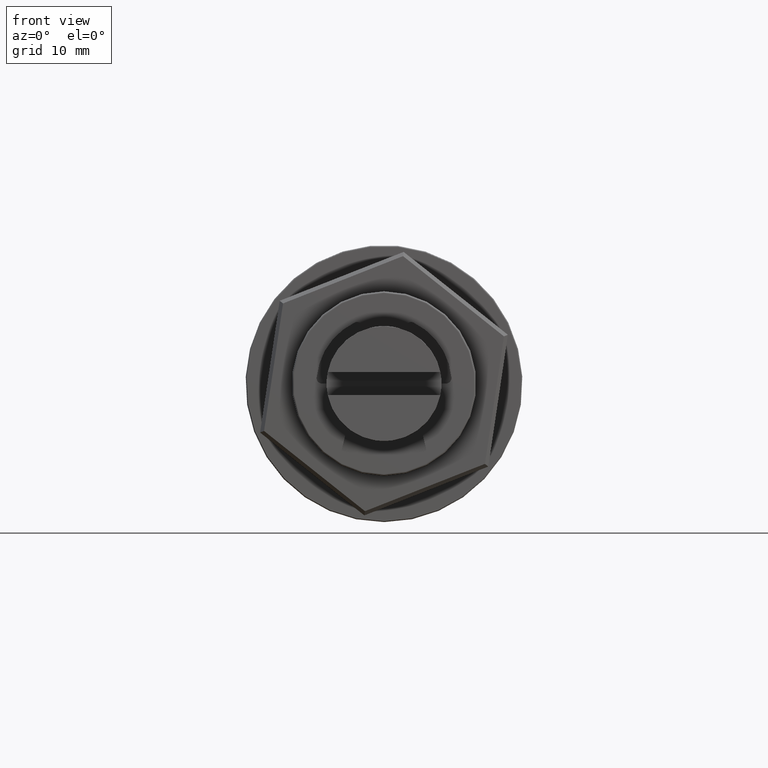
[diagram: clean part render]
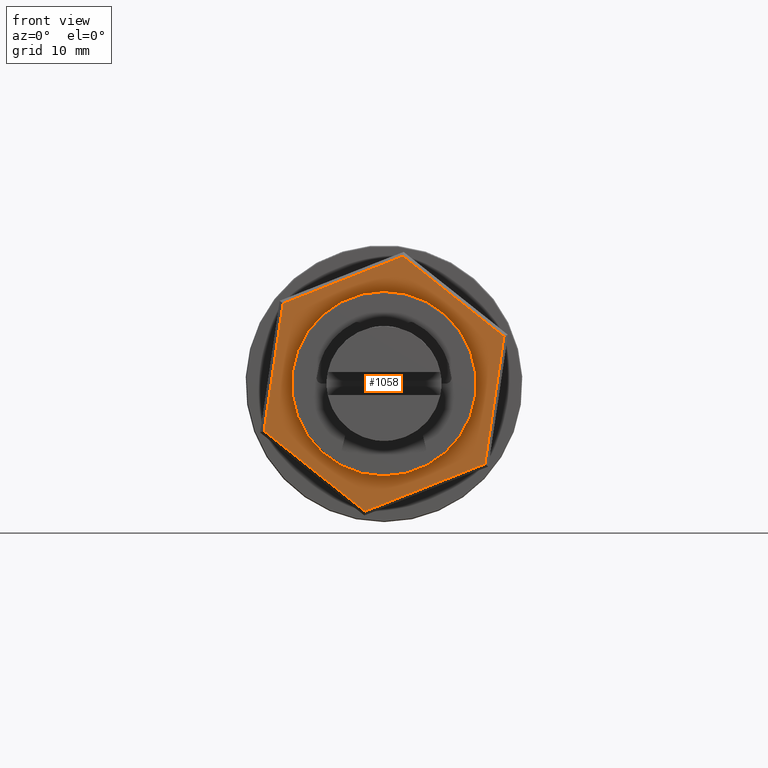
[diagram: same view with one face highlighted and labeled with its STEP entity id]
A machine part, front view. The second image highlights one B-rep face of the part: STEP entity #1058.
In plain terms, the highlighted planar face has unit normal (0, 1, -0).
Its self-contained STEP definition (entity closure, byte-faithful):
#60=CIRCLE('',#1191,0.0127);
#170=ORIENTED_EDGE('',*,*,#435,.T.);
#171=ORIENTED_EDGE('',*,*,#436,.T.);
#172=ORIENTED_EDGE('',*,*,#437,.T.);
#173=ORIENTED_EDGE('',*,*,#438,.T.);
#174=ORIENTED_EDGE('',*,*,#439,.T.);
#175=ORIENTED_EDGE('',*,*,#440,.T.);
#176=ORIENTED_EDGE('',*,*,#426,.T.);
#426=EDGE_CURVE('',#558,#558,#60,.T.);
#435=EDGE_CURVE('',#565,#566,#667,.T.);
#436=EDGE_CURVE('',#566,#567,#668,.T.);
#437=EDGE_CURVE('',#567,#568,#669,.T.);
#438=EDGE_CURVE('',#568,#569,#670,.T.);
#439=EDGE_CURVE('',#569,#570,#671,.T.);
#440=EDGE_CURVE('',#570,#565,#672,.T.);
#558=VERTEX_POINT('',#1697);
#565=VERTEX_POINT('',#1716);
#566=VERTEX_POINT('',#1717);
#567=VERTEX_POINT('',#1719);
#568=VERTEX_POINT('',#1721);
#569=VERTEX_POINT('',#1723);
#570=VERTEX_POINT('',#1725);
#667=LINE('',#1715,#747);
#668=LINE('',#1718,#748);
#669=LINE('',#1720,#749);
#670=LINE('',#1722,#750);
#671=LINE('',#1724,#751);
#672=LINE('',#1726,#752);
#747=VECTOR('',#1363,1.);
#748=VECTOR('',#1364,1.);
#749=VECTOR('',#1365,1.);
#750=VECTOR('',#1366,1.);
#751=VECTOR('',#1367,1.);
#752=VECTOR('',#1368,1.);
#813=EDGE_LOOP('',(#170,#171,#172,#173,#174,#175));
#814=EDGE_LOOP('',(#176));
#915=FACE_BOUND('',#813,.T.);
#916=FACE_BOUND('',#814,.T.);
#1016=PLANE('',#1194);
#1058=ADVANCED_FACE('',(#915,#916),#1016,.F.);
#1191=AXIS2_PLACEMENT_3D('',#1696,#1347,#1348);
#1194=AXIS2_PLACEMENT_3D('',#1714,#1361,#1362);
#1347=DIRECTION('',(0.,0.,1.));
#1348=DIRECTION('',(1.,0.,0.));
#1361=DIRECTION('',(0.,0.,1.));
#1362=DIRECTION('',(1.,0.,0.));
#1363=DIRECTION('',(0.36683459775204,0.930286180641258,0.));
#1364=DIRECTION('',(0.989068764100949,0.147455009680317,0.));
#1365=DIRECTION('',(0.622234166348909,-0.782831170960942,0.));
#1366=DIRECTION('',(-0.36683459775204,-0.930286180641258,0.));
#1367=DIRECTION('',(-0.989068764100949,-0.147455009680317,0.));
#1368=DIRECTION('',(-0.622234166348909,0.782831170960942,0.));
#1696=CARTESIAN_POINT('',(0.,7.77650717458569E-19,0.00396875));
#1697=CARTESIAN_POINT('',(0.0127,7.77650717458569E-19,0.00396875));
#1714=CARTESIAN_POINT('',(0.,1.38777878078145E-17,0.00396875));
#1715=CARTESIAN_POINT('',(-0.0142957077379142,0.00563714726365561,0.00396875));
#1716=CARTESIAN_POINT('',(-0.0175503162280474,-0.00261648344708537,0.00396875));
#1717=CARTESIAN_POINT('',(-0.0110410992477811,0.0138907779743966,0.00396875));
#1718=CARTESIAN_POINT('',(-0.00226594113375742,0.0151990196979393,0.00396875));
#1719=CARTESIAN_POINT('',(0.00650921698026623,0.016507261421482,0.00396875));
#1720=CARTESIAN_POINT('',(0.0120297666041568,0.00956187243428369,0.00396875));
#1721=CARTESIAN_POINT('',(0.0175503162280473,0.0026164834470854,0.00396875));
#1722=CARTESIAN_POINT('',(0.0142957077379142,-0.00563714726365558,0.00396875));
#1723=CARTESIAN_POINT('',(0.0110410992477811,-0.0138907779743966,0.00396875));
#1724=CARTESIAN_POINT('',(0.00226594113375743,-0.0151990196979392,0.00396875));
#1725=CARTESIAN_POINT('',(-0.00650921698026624,-0.0165072614214819,0.00396875));
#1726=CARTESIAN_POINT('',(-0.0120297666041568,-0.00956187243428366,0.00396875));